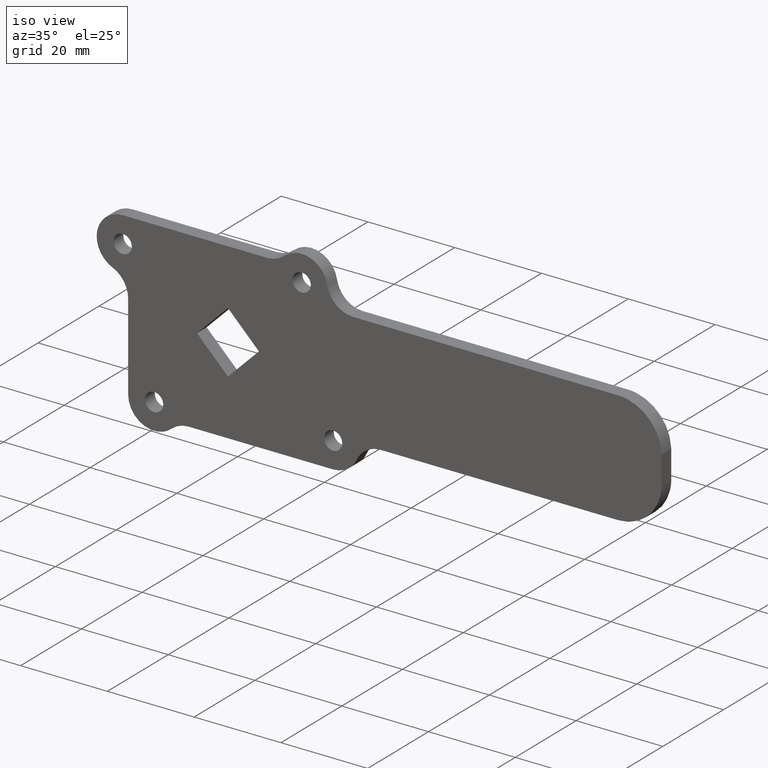
[diagram: clean part render]
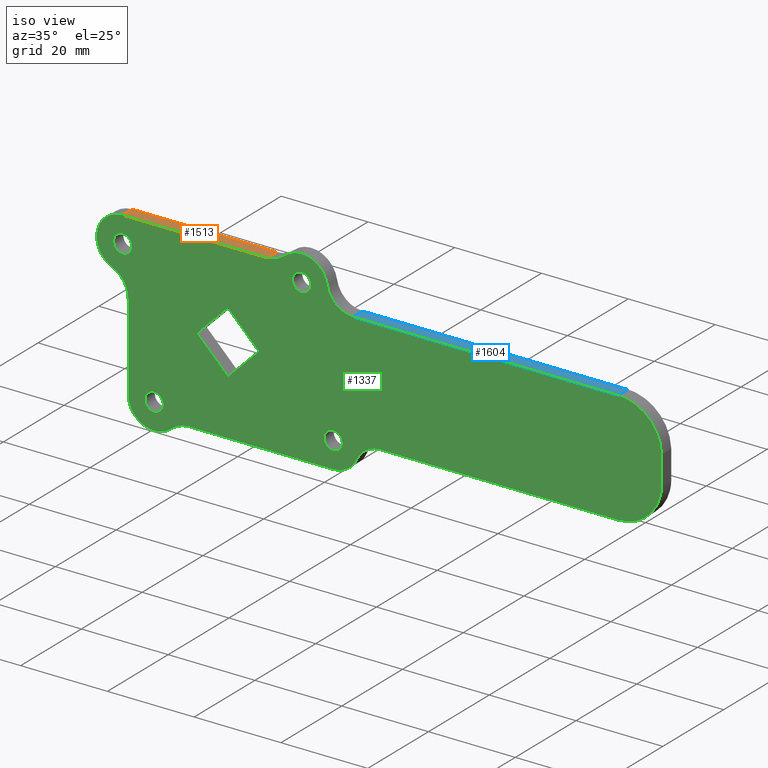
[diagram: same view with three faces highlighted in distinct colors, each labeled with its STEP entity id]
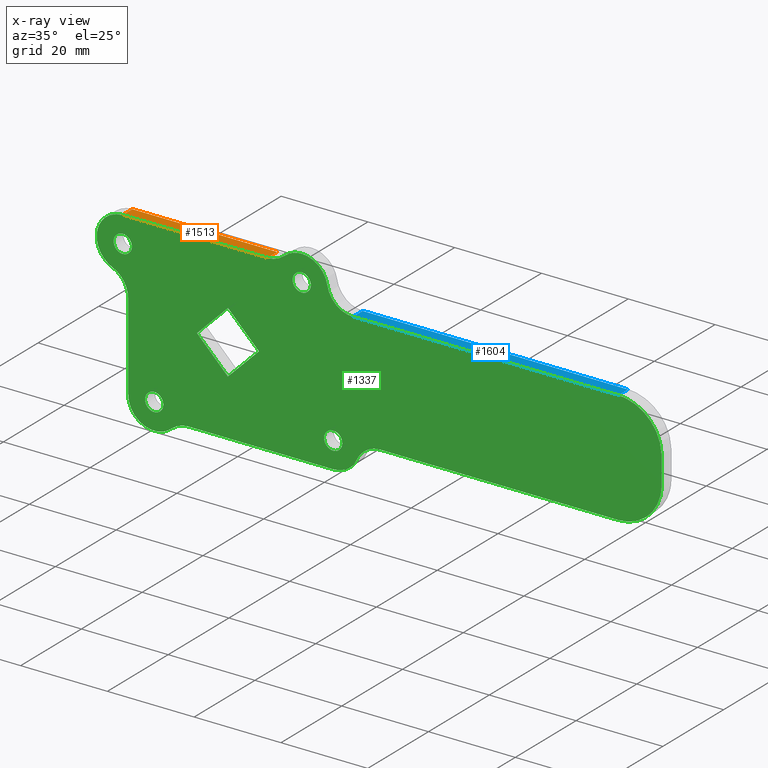
[diagram: x-ray of the same camera — body ghosted, the three highlighted faces saturated]
A machine part, iso view with three faces highlighted in distinct colors.
The next image is the same camera in x-ray (body ghosted, the three faces saturated) — at least one of them is partly hidden behind the body in this view.
Their STEP definitions:

[orange] entity #1513 — the highlighted face is a freeform B-spline surface patch.
#855=CARTESIAN_POINT('',(-24.250000000000000,0.0,20.0));
#856=VERTEX_POINT('',#855);
#872=CARTESIAN_POINT('',(9.062745999999788,0.0,20.0));
#873=VERTEX_POINT('',#872);
#874=CARTESIAN_POINT('',(-24.250000000000000,0.0,20.0));
#875=CARTESIAN_POINT('',(9.062745999999788,0.0,20.0));
#876=QUASI_UNIFORM_CURVE('',1,(#874,#875),.UNSPECIFIED.,.F.,.U.);
#877=EDGE_CURVE('',#856,#873,#876,.T.);
#1183=CARTESIAN_POINT('',(9.062745999999788,-3.200000000000000,20.0));
#1184=VERTEX_POINT('',#1183);
#1198=CARTESIAN_POINT('',(-24.250000000000000,-3.200000000000000,20.0));
#1199=VERTEX_POINT('',#1198);
#1200=CARTESIAN_POINT('',(-24.250000000000000,-3.200000000000000,20.0));
#1201=CARTESIAN_POINT('',(9.062745999999788,-3.200000000000000,20.0));
#1202=QUASI_UNIFORM_CURVE('',1,(#1200,#1201),.UNSPECIFIED.,.F.,.U.);
#1203=EDGE_CURVE('',#1199,#1184,#1202,.T.);
#1490=CARTESIAN_POINT('',(-24.250000000000000,-3.200000000000000,20.0));
#1491=CARTESIAN_POINT('',(-24.250000000000000,0.0,20.0));
#1492=QUASI_UNIFORM_CURVE('',1,(#1490,#1491),.UNSPECIFIED.,.F.,.U.);
#1493=EDGE_CURVE('',#1199,#856,#1492,.T.);
#1498=CARTESIAN_POINT('',(-25.913971598133429,-3.359840053876400,20.0));
#1499=CARTESIAN_POINT('',(10.726718491650690,-3.359840053876400,20.0));
#1500=CARTESIAN_POINT('',(-25.913971598133429,0.159840082486629,20.0));
#1501=CARTESIAN_POINT('',(10.726718491650690,0.159840082486629,20.0));
#1502=B_SPLINE_SURFACE_WITH_KNOTS('',1,1,((#1498,#1500),(#1499,#1501)),.UNSPECIFIED.,.F.,.F.,.U.,(2,2),(2,2),(0.0,36.640690089784123),(0.0,3.519680136363029),.UNSPECIFIED.);
#1503=ORIENTED_EDGE('',*,*,#877,.F.);
#1504=ORIENTED_EDGE('',*,*,#1493,.F.);
#1505=ORIENTED_EDGE('',*,*,#1203,.T.);
#1506=CARTESIAN_POINT('',(9.062745999999788,-3.200000000000000,20.0));
#1507=CARTESIAN_POINT('',(9.062745999999788,0.0,20.0));
#1508=QUASI_UNIFORM_CURVE('',1,(#1506,#1507),.UNSPECIFIED.,.F.,.U.);
#1509=EDGE_CURVE('',#1184,#873,#1508,.T.);
#1510=ORIENTED_EDGE('',*,*,#1509,.T.);
#1511=EDGE_LOOP('',(#1503,#1504,#1505,#1510));
#1512=FACE_OUTER_BOUND('',#1511,.T.);
#1513=ADVANCED_FACE('',(#1512),#1502,.T.);

[blue] entity #1604 — the highlighted face is a freeform B-spline surface patch.
#911=CARTESIAN_POINT('',(28.832159000000001,0.0,12.999999999999799));
#912=VERTEX_POINT('',#911);
#926=CARTESIAN_POINT('',(89.949985999999996,0.0,13.0));
#927=VERTEX_POINT('',#926);
#928=CARTESIAN_POINT('',(28.832159000000001,0.0,12.999999999999799));
#929=CARTESIAN_POINT('',(89.949985999999996,0.0,13.0));
#930=QUASI_UNIFORM_CURVE('',1,(#928,#929),.UNSPECIFIED.,.F.,.U.);
#931=EDGE_CURVE('',#912,#927,#930,.T.);
#1129=CARTESIAN_POINT('',(89.949985999999996,-3.200000000000000,13.0));
#1130=VERTEX_POINT('',#1129);
#1144=CARTESIAN_POINT('',(28.832159000000001,-3.200000000000000,12.999999999999799));
#1145=VERTEX_POINT('',#1144);
#1146=CARTESIAN_POINT('',(28.832159000000001,-3.200000000000000,12.999999999999799));
#1147=CARTESIAN_POINT('',(89.949985999999996,-3.200000000000000,13.0));
#1148=QUASI_UNIFORM_CURVE('',1,(#1146,#1147),.UNSPECIFIED.,.F.,.U.);
#1149=EDGE_CURVE('',#1145,#1130,#1148,.T.);
#1581=CARTESIAN_POINT('',(28.832159000000001,-3.200000000000000,12.999999999999799));
#1582=CARTESIAN_POINT('',(28.832159000000001,0.0,12.999999999999799));
#1583=QUASI_UNIFORM_CURVE('',1,(#1581,#1582),.UNSPECIFIED.,.F.,.U.);
#1584=EDGE_CURVE('',#1145,#912,#1583,.T.);
#1589=CARTESIAN_POINT('',(25.779323659808210,-3.359840053876400,13.0));
#1590=CARTESIAN_POINT('',(93.002822979499683,-3.359840053876400,13.0));
#1591=CARTESIAN_POINT('',(25.779323659808210,0.159840082486630,13.0));
#1592=CARTESIAN_POINT('',(93.002822979499683,0.159840082486630,13.0));
#1593=B_SPLINE_SURFACE_WITH_KNOTS('',1,1,((#1589,#1591),(#1590,#1592)),.UNSPECIFIED.,.F.,.F.,.U.,(2,2),(2,2),(0.0,67.223499319691484),(0.0,3.519680136363030),.UNSPECIFIED.);
#1594=ORIENTED_EDGE('',*,*,#931,.F.);
#1595=ORIENTED_EDGE('',*,*,#1584,.F.);
#1596=ORIENTED_EDGE('',*,*,#1149,.T.);
#1597=CARTESIAN_POINT('',(89.949985999999996,-3.200000000000000,13.0));
#1598=CARTESIAN_POINT('',(89.949985999999996,0.0,13.0));
#1599=QUASI_UNIFORM_CURVE('',1,(#1597,#1598),.UNSPECIFIED.,.F.,.U.);
#1600=EDGE_CURVE('',#1130,#927,#1599,.T.);
#1601=ORIENTED_EDGE('',*,*,#1600,.T.);
#1602=EDGE_LOOP('',(#1594,#1595,#1596,#1601));
#1603=FACE_OUTER_BOUND('',#1602,.T.);
#1604=ADVANCED_FACE('',(#1603),#1593,.T.);

[green] entity #1337 — the highlighted face is a freeform B-spline surface patch.
#96=CARTESIAN_POINT('',(19.093526400772461,-3.200000000000000,16.835235898118810));
#97=VERTEX_POINT('',#96);
#103=CARTESIAN_POINT('',(17.0,-3.200000000000000,19.100000000000001));
#104=VERTEX_POINT('',#103);
#105=CARTESIAN_POINT('',(19.093526400772465,-3.200000000000001,16.835235898118810));
#106=CARTESIAN_POINT('',(19.100000000000001,-3.200000000000001,16.917490774427215));
#107=CARTESIAN_POINT('',(19.100000000000001,-3.200000000000000,17.0));
#108=CARTESIAN_POINT('',(19.100000000000001,-3.200000000000000,19.100000000000001));
#109=CARTESIAN_POINT('',(17.0,-3.200000000000000,19.100000000000001));
#117=(BOUNDED_CURVE()B_SPLINE_CURVE(2,(#105,#106,#107,#108,#109),.UNSPECIFIED.,.F.,.U.)B_SPLINE_CURVE_WITH_KNOTS((3,2,3),(0.736331300493120,0.750000000000000,1.0),.UNSPECIFIED.)CURVE()GEOMETRIC_REPRESENTATION_ITEM()RATIONAL_B_SPLINE_CURVE((0.969723355880383,0.983986122417744,1.0,0.707106781186548,1.0))REPRESENTATION_ITEM(''));
#118=EDGE_CURVE('',#97,#104,#117,.T.);
#120=CARTESIAN_POINT('',(14.906473599227541,-3.200000000000000,17.164764101881200));
#121=VERTEX_POINT('',#120);
#122=CARTESIAN_POINT('',(17.0,-3.200000000000000,19.100000000000001));
#123=CARTESIAN_POINT('',(15.058779969104023,-3.200000000000001,19.099999999999998));
#124=CARTESIAN_POINT('',(14.906473599227548,-3.200000000000001,17.164764101881193));
#132=(BOUNDED_CURVE()B_SPLINE_CURVE(2,(#122,#123,#124),.UNSPECIFIED.,.F.,.U.)B_SPLINE_CURVE_WITH_KNOTS((3,3),(0.0,0.236331300493120),.UNSPECIFIED.)CURVE()GEOMETRIC_REPRESENTATION_ITEM()RATIONAL_B_SPLINE_CURVE((1.0,0.723120658768803,0.969723355880383))REPRESENTATION_ITEM(''));
#133=EDGE_CURVE('',#104,#121,#132,.T.);
#179=CARTESIAN_POINT('',(17.0,-3.200000000000000,14.900000000000000));
#180=VERTEX_POINT('',#179);
#181=CARTESIAN_POINT('',(14.906473599227548,-3.200000000000001,17.164764101881193));
#182=CARTESIAN_POINT('',(14.900000000000000,-3.200000000000001,17.082509225572785));
#183=CARTESIAN_POINT('',(14.900000000000000,-3.200000000000000,17.0));
#184=CARTESIAN_POINT('',(14.900000000000002,-3.200000000000000,14.900000000000002));
#185=CARTESIAN_POINT('',(17.0,-3.200000000000000,14.900000000000000));
#193=(BOUNDED_CURVE()B_SPLINE_CURVE(2,(#181,#182,#183,#184,#185),.UNSPECIFIED.,.F.,.U.)B_SPLINE_CURVE_WITH_KNOTS((3,2,3),(0.236331300493120,0.250000000000000,0.500000000000000),.UNSPECIFIED.)CURVE()GEOMETRIC_REPRESENTATION_ITEM()RATIONAL_B_SPLINE_CURVE((0.969723355880383,0.983986122417744,1.0,0.707106781186548,1.0))REPRESENTATION_ITEM(''));
#194=EDGE_CURVE('',#121,#180,#193,.T.);
#196=CARTESIAN_POINT('',(17.0,-3.200000000000000,14.900000000000000));
#197=CARTESIAN_POINT('',(18.941220030895977,-3.200000000000001,14.900000000000002));
#198=CARTESIAN_POINT('',(19.093526400772458,-3.200000000000001,16.835235898118803));
#206=(BOUNDED_CURVE()B_SPLINE_CURVE(2,(#196,#197,#198),.UNSPECIFIED.,.F.,.U.)B_SPLINE_CURVE_WITH_KNOTS((3,3),(0.500000000000000,0.736331300493120),.UNSPECIFIED.)CURVE()GEOMETRIC_REPRESENTATION_ITEM()RATIONAL_B_SPLINE_CURVE((1.0,0.723120658768803,0.969723355880383))REPRESENTATION_ITEM(''));
#207=EDGE_CURVE('',#180,#97,#206,.T.);
#278=CARTESIAN_POINT('',(-22.156473599227539,-3.200000000000000,13.835235898118601));
#279=VERTEX_POINT('',#278);
#285=CARTESIAN_POINT('',(-24.250000000000000,-3.200000000000000,16.099999999999799));
#286=VERTEX_POINT('',#285);
#287=CARTESIAN_POINT('',(-22.156473599227542,-3.200000000000001,13.835235898118606));
#288=CARTESIAN_POINT('',(-22.150000000000006,-3.200000000000001,13.917490774427018));
#289=CARTESIAN_POINT('',(-22.149999999999999,-3.200000000000000,13.999999999999799));
#290=CARTESIAN_POINT('',(-22.150000000000002,-3.200000000000000,16.099999999999795));
#291=CARTESIAN_POINT('',(-24.250000000000000,-3.200000000000000,16.099999999999799));
#299=(BOUNDED_CURVE()B_SPLINE_CURVE(2,(#287,#288,#289,#290,#291),.UNSPECIFIED.,.F.,.U.)B_SPLINE_CURVE_WITH_KNOTS((3,2,3),(0.736331300493120,0.750000000000000,1.0),.UNSPECIFIED.)CURVE()GEOMETRIC_REPRESENTATION_ITEM()RATIONAL_B_SPLINE_CURVE((0.969723355880383,0.983986122417744,1.0,0.707106781186548,1.0))REPRESENTATION_ITEM(''));
#300=EDGE_CURVE('',#279,#286,#299,.T.);
#302=CARTESIAN_POINT('',(-26.343526400772461,-3.200000000000000,14.164764101881000));
#303=VERTEX_POINT('',#302);
#304=CARTESIAN_POINT('',(-24.250000000000000,-3.200000000000000,16.099999999999799));
#305=CARTESIAN_POINT('',(-26.191220030895973,-3.200000000000000,16.099999999999795));
#306=CARTESIAN_POINT('',(-26.343526400772458,-3.200000000000000,14.164764101881000));
#314=(BOUNDED_CURVE()B_SPLINE_CURVE(2,(#304,#305,#306),.UNSPECIFIED.,.F.,.U.)B_SPLINE_CURVE_WITH_KNOTS((3,3),(0.0,0.236331300493120),.UNSPECIFIED.)CURVE()GEOMETRIC_REPRESENTATION_ITEM()RATIONAL_B_SPLINE_CURVE((1.0,0.723120658768803,0.969723355880383))REPRESENTATION_ITEM(''));
#315=EDGE_CURVE('',#286,#303,#314,.T.);
#361=CARTESIAN_POINT('',(-24.250000000000000,-3.200000000000000,11.899999999999800));
#362=VERTEX_POINT('',#361);
#363=CARTESIAN_POINT('',(-26.343526400772454,-3.200000000000000,14.164764101881003));
#364=CARTESIAN_POINT('',(-26.350000000000009,-3.200000000000000,14.082509225572581));
#365=CARTESIAN_POINT('',(-26.350000000000001,-3.200000000000000,13.999999999999799));
#366=CARTESIAN_POINT('',(-26.350000000000005,-3.200000000000000,11.899999999999800));
#367=CARTESIAN_POINT('',(-24.250000000000000,-3.200000000000000,11.899999999999800));
#375=(BOUNDED_CURVE()B_SPLINE_CURVE(2,(#363,#364,#365,#366,#367),.UNSPECIFIED.,.F.,.U.)B_SPLINE_CURVE_WITH_KNOTS((3,2,3),(0.236331300493120,0.250000000000000,0.500000000000000),.UNSPECIFIED.)CURVE()GEOMETRIC_REPRESENTATION_ITEM()RATIONAL_B_SPLINE_CURVE((0.969723355880383,0.983986122417744,1.0,0.707106781186548,1.0))REPRESENTATION_ITEM(''));
#376=EDGE_CURVE('',#303,#362,#375,.T.);
#378=CARTESIAN_POINT('',(-24.250000000000000,-3.200000000000000,11.899999999999800));
#379=CARTESIAN_POINT('',(-22.308779969104030,-3.200000000000001,11.899999999999800));
#380=CARTESIAN_POINT('',(-22.156473599227542,-3.200000000000001,13.835235898118606));
#388=(BOUNDED_CURVE()B_SPLINE_CURVE(2,(#378,#379,#380),.UNSPECIFIED.,.F.,.U.)B_SPLINE_CURVE_WITH_KNOTS((3,3),(0.500000000000000,0.736331300493120),.UNSPECIFIED.)CURVE()GEOMETRIC_REPRESENTATION_ITEM()RATIONAL_B_SPLINE_CURVE((1.0,0.723120658768803,0.969723355880383))REPRESENTATION_ITEM(''));
#389=EDGE_CURVE('',#362,#279,#388,.T.);
#460=CARTESIAN_POINT('',(26.343526400772461,-3.200000000000000,-14.164764101881200));
#461=VERTEX_POINT('',#460);
#467=CARTESIAN_POINT('',(24.250000000000000,-3.200000000000000,-11.900000000000000));
#468=VERTEX_POINT('',#467);
#469=CARTESIAN_POINT('',(26.343526400772465,-3.200000000000001,-14.164764101881200));
#470=CARTESIAN_POINT('',(26.350000000000005,-3.200000000000001,-14.082509225572787));
#471=CARTESIAN_POINT('',(26.350000000000001,-3.200000000000000,-14.0));
#472=CARTESIAN_POINT('',(26.350000000000005,-3.200000000000000,-11.900000000000000));
#473=CARTESIAN_POINT('',(24.250000000000000,-3.200000000000000,-11.900000000000000));
#481=(BOUNDED_CURVE()B_SPLINE_CURVE(2,(#469,#470,#471,#472,#473),.UNSPECIFIED.,.F.,.U.)B_SPLINE_CURVE_WITH_KNOTS((3,2,3),(0.736331300493120,0.750000000000000,1.0),.UNSPECIFIED.)CURVE()GEOMETRIC_REPRESENTATION_ITEM()RATIONAL_B_SPLINE_CURVE((0.969723355880383,0.983986122417744,1.0,0.707106781186548,1.0))REPRESENTATION_ITEM(''));
#482=EDGE_CURVE('',#461,#468,#481,.T.);
#484=CARTESIAN_POINT('',(22.156473599227539,-3.200000000000000,-13.835235898118800));
#485=VERTEX_POINT('',#484);
#486=CARTESIAN_POINT('',(24.250000000000000,-3.200000000000000,-11.900000000000000));
#487=CARTESIAN_POINT('',(22.308779969104030,-3.200000000000001,-11.900000000000002));
#488=CARTESIAN_POINT('',(22.156473599227542,-3.200000000000001,-13.835235898118803));
#496=(BOUNDED_CURVE()B_SPLINE_CURVE(2,(#486,#487,#488),.UNSPECIFIED.,.F.,.U.)B_SPLINE_CURVE_WITH_KNOTS((3,3),(0.0,0.236331300493120),.UNSPECIFIED.)CURVE()GEOMETRIC_REPRESENTATION_ITEM()RATIONAL_B_SPLINE_CURVE((1.0,0.723120658768803,0.969723355880383))REPRESENTATION_ITEM(''));
#497=EDGE_CURVE('',#468,#485,#496,.T.);
#543=CARTESIAN_POINT('',(24.250000000000000,-3.200000000000000,-16.100000000000001));
#544=VERTEX_POINT('',#543);
#545=CARTESIAN_POINT('',(22.156473599227535,-3.200000000000000,-13.835235898118805));
#546=CARTESIAN_POINT('',(22.149999999999995,-3.200000000000001,-13.917490774427211));
#547=CARTESIAN_POINT('',(22.149999999999999,-3.200000000000000,-14.0));
#548=CARTESIAN_POINT('',(22.150000000000002,-3.200000000000000,-16.100000000000005));
#549=CARTESIAN_POINT('',(24.250000000000000,-3.200000000000000,-16.100000000000001));
#557=(BOUNDED_CURVE()B_SPLINE_CURVE(2,(#545,#546,#547,#548,#549),.UNSPECIFIED.,.F.,.U.)B_SPLINE_CURVE_WITH_KNOTS((3,2,3),(0.236331300493120,0.250000000000000,0.500000000000000),.UNSPECIFIED.)CURVE()GEOMETRIC_REPRESENTATION_ITEM()RATIONAL_B_SPLINE_CURVE((0.969723355880383,0.983986122417744,1.0,0.707106781186548,1.0))REPRESENTATION_ITEM(''));
#558=EDGE_CURVE('',#485,#544,#557,.T.);
#560=CARTESIAN_POINT('',(24.250000000000000,-3.200000000000000,-16.100000000000001));
#561=CARTESIAN_POINT('',(26.191220030895984,-3.200000000000001,-16.099999999999994));
#562=CARTESIAN_POINT('',(26.343526400772461,-3.200000000000001,-14.164764101881193));
#570=(BOUNDED_CURVE()B_SPLINE_CURVE(2,(#560,#561,#562),.UNSPECIFIED.,.F.,.U.)B_SPLINE_CURVE_WITH_KNOTS((3,3),(0.500000000000000,0.736331300493120),.UNSPECIFIED.)CURVE()GEOMETRIC_REPRESENTATION_ITEM()RATIONAL_B_SPLINE_CURVE((1.0,0.723120658768803,0.969723355880383))REPRESENTATION_ITEM(''));
#571=EDGE_CURVE('',#544,#461,#570,.T.);
#642=CARTESIAN_POINT('',(-14.906473599227541,-3.200000000000000,-17.164764101881200));
#643=VERTEX_POINT('',#642);
#649=CARTESIAN_POINT('',(-17.0,-3.200000000000000,-14.900000000000000));
#650=VERTEX_POINT('',#649);
#651=CARTESIAN_POINT('',(-14.906473599227548,-3.200000000000001,-17.164764101881193));
#652=CARTESIAN_POINT('',(-14.900000000000000,-3.200000000000001,-17.082509225572785));
#653=CARTESIAN_POINT('',(-14.900000000000000,-3.200000000000000,-17.0));
#654=CARTESIAN_POINT('',(-14.900000000000002,-3.200000000000000,-14.900000000000002));
#655=CARTESIAN_POINT('',(-17.0,-3.200000000000000,-14.900000000000000));
#663=(BOUNDED_CURVE()B_SPLINE_CURVE(2,(#651,#652,#653,#654,#655),.UNSPECIFIED.,.F.,.U.)B_SPLINE_CURVE_WITH_KNOTS((3,2,3),(0.736331300493120,0.750000000000000,1.0),.UNSPECIFIED.)CURVE()GEOMETRIC_REPRESENTATION_ITEM()RATIONAL_B_SPLINE_CURVE((0.969723355880383,0.983986122417744,1.0,0.707106781186548,1.0))REPRESENTATION_ITEM(''));
#664=EDGE_CURVE('',#643,#650,#663,.T.);
#666=CARTESIAN_POINT('',(-19.093526400772461,-3.200000000000000,-16.835235898118810));
#667=VERTEX_POINT('',#666);
#668=CARTESIAN_POINT('',(-17.0,-3.200000000000000,-14.900000000000000));
#669=CARTESIAN_POINT('',(-18.941220030895980,-3.200000000000000,-14.900000000000004));
#670=CARTESIAN_POINT('',(-19.093526400772465,-3.200000000000001,-16.835235898118810));
#678=(BOUNDED_CURVE()B_SPLINE_CURVE(2,(#668,#669,#670),.UNSPECIFIED.,.F.,.U.)B_SPLINE_CURVE_WITH_KNOTS((3,3),(0.0,0.236331300493120),.UNSPECIFIED.)CURVE()GEOMETRIC_REPRESENTATION_ITEM()RATIONAL_B_SPLINE_CURVE((1.0,0.723120658768803,0.969723355880383))REPRESENTATION_ITEM(''));
#679=EDGE_CURVE('',#650,#667,#678,.T.);
#725=CARTESIAN_POINT('',(-17.0,-3.200000000000000,-19.100000000000001));
#726=VERTEX_POINT('',#725);
#727=CARTESIAN_POINT('',(-19.093526400772461,-3.200000000000001,-16.835235898118807));
#728=CARTESIAN_POINT('',(-19.100000000000001,-3.200000000000001,-16.917490774427222));
#729=CARTESIAN_POINT('',(-19.100000000000001,-3.200000000000000,-17.0));
#730=CARTESIAN_POINT('',(-19.100000000000001,-3.200000000000000,-19.100000000000001));
#731=CARTESIAN_POINT('',(-17.0,-3.200000000000000,-19.100000000000001));
#739=(BOUNDED_CURVE()B_SPLINE_CURVE(2,(#727,#728,#729,#730,#731),.UNSPECIFIED.,.F.,.U.)B_SPLINE_CURVE_WITH_KNOTS((3,2,3),(0.236331300493120,0.250000000000000,0.500000000000000),.UNSPECIFIED.)CURVE()GEOMETRIC_REPRESENTATION_ITEM()RATIONAL_B_SPLINE_CURVE((0.969723355880384,0.983986122417745,1.0,0.707106781186548,1.0))REPRESENTATION_ITEM(''));
#740=EDGE_CURVE('',#667,#726,#739,.T.);
#742=CARTESIAN_POINT('',(-17.0,-3.200000000000000,-19.100000000000001));
#743=CARTESIAN_POINT('',(-15.058779969104023,-3.200000000000001,-19.099999999999998));
#744=CARTESIAN_POINT('',(-14.906473599227548,-3.200000000000001,-17.164764101881193));
#752=(BOUNDED_CURVE()B_SPLINE_CURVE(2,(#742,#743,#744),.UNSPECIFIED.,.F.,.U.)B_SPLINE_CURVE_WITH_KNOTS((3,3),(0.500000000000000,0.736331300493120),.UNSPECIFIED.)CURVE()GEOMETRIC_REPRESENTATION_ITEM()RATIONAL_B_SPLINE_CURVE((1.0,0.723120658768803,0.969723355880383))REPRESENTATION_ITEM(''));
#753=EDGE_CURVE('',#726,#643,#752,.T.);
#1055=CARTESIAN_POINT('',(-36.754573230449672,-3.200000000000000,25.296899117684969));
#1056=CARTESIAN_POINT('',(106.505923443722300,-3.200000000000000,25.296899117684969));
#1057=CARTESIAN_POINT('',(-36.754573230449672,-3.200000000000000,-25.293884845904248));
#1058=CARTESIAN_POINT('',(106.505923443722300,-3.200000000000000,-25.293884845904248));
#1059=B_SPLINE_SURFACE_WITH_KNOTS('',1,1,((#1055,#1057),(#1056,#1058)),.UNSPECIFIED.,.F.,.F.,.U.,(2,2),(2,2),(0.0,143.260496674172000),(0.0,50.590783963589217),.UNSPECIFIED.);
#1060=CARTESIAN_POINT('',(24.250000000000000,-3.200000000000000,-20.0));
#1061=VERTEX_POINT('',#1060);
#1062=CARTESIAN_POINT('',(29.704355927316101,-3.200000000000000,-16.500000033524799));
#1063=VERTEX_POINT('',#1062);
#1064=CARTESIAN_POINT('',(24.250000000000000,-3.200000000000000,-20.0));
#1065=CARTESIAN_POINT('',(28.100133627770180,-3.200000000000001,-20.0));
#1066=CARTESIAN_POINT('',(29.704355927316101,-3.200000000000000,-16.500000033524799));
#1074=(BOUNDED_CURVE()B_SPLINE_CURVE(2,(#1064,#1065,#1066),.UNSPECIFIED.,.F.,.U.)CURVE()GEOMETRIC_REPRESENTATION_ITEM()QUASI_UNIFORM_CURVE()RATIONAL_B_SPLINE_CURVE((1.0,0.841625415339563,1.0))REPRESENTATION_ITEM(''));
#1075=EDGE_CURVE('',#1061,#1063,#1074,.T.);
#1076=ORIENTED_EDGE('',*,*,#1075,.T.);
#1077=CARTESIAN_POINT('',(35.158712000000001,-3.200000000000000,-13.0));
#1078=VERTEX_POINT('',#1077);
#1079=CARTESIAN_POINT('',(35.158712000000001,-3.200000000000000,-13.0));
#1080=CARTESIAN_POINT('',(31.308578286449592,-3.200000000000002,-12.999999999999996));
#1081=CARTESIAN_POINT('',(29.704355927316080,-3.200000000000000,-16.500000033524788));
#1089=(BOUNDED_CURVE()B_SPLINE_CURVE(2,(#1079,#1080,#1081),.UNSPECIFIED.,.F.,.U.)CURVE()GEOMETRIC_REPRESENTATION_ITEM()QUASI_UNIFORM_CURVE()RATIONAL_B_SPLINE_CURVE((1.0,0.841625409870449,1.0))REPRESENTATION_ITEM(''));
#1090=EDGE_CURVE('',#1078,#1063,#1089,.T.);
#1091=ORIENTED_EDGE('',*,*,#1090,.F.);
#1092=CARTESIAN_POINT('',(89.949985999999996,-3.200000000000000,-13.0));
#1093=VERTEX_POINT('',#1092);
#1094=CARTESIAN_POINT('',(89.949985999999996,-3.200000000000000,-13.0));
#1095=CARTESIAN_POINT('',(35.158712000000001,-3.200000000000000,-13.0));
#1096=QUASI_UNIFORM_CURVE('',1,(#1094,#1095),.UNSPECIFIED.,.F.,.U.);
#1097=EDGE_CURVE('',#1093,#1078,#1096,.T.);
#1098=ORIENTED_EDGE('',*,*,#1097,.F.);
#1099=CARTESIAN_POINT('',(99.944429013755993,-3.200000000000000,-3.333333033809485));
#1100=VERTEX_POINT('',#1099);
#1101=CARTESIAN_POINT('',(89.949985999999996,-3.200000000000000,-13.0));
#1102=CARTESIAN_POINT('',(99.622027809851616,-3.200000000000002,-13.0));
#1103=CARTESIAN_POINT('',(99.944429013755993,-3.200000000000000,-3.333333033809485));
#1111=(BOUNDED_CURVE()B_SPLINE_CURVE(2,(#1101,#1102,#1103),.UNSPECIFIED.,.F.,.U.)CURVE()GEOMETRIC_REPRESENTATION_ITEM()QUASI_UNIFORM_CURVE()RATIONAL_B_SPLINE_CURVE((1.0,0.718795277890899,1.0))REPRESENTATION_ITEM(''));
#1112=EDGE_CURVE('',#1093,#1100,#1111,.T.);
#1113=ORIENTED_EDGE('',*,*,#1112,.T.);
#1114=CARTESIAN_POINT('',(99.944428901375602,-3.200000000000000,3.333333303380950));
#1115=VERTEX_POINT('',#1114);
#1116=CARTESIAN_POINT('',(99.944429013756007,-3.200000000000000,-3.333333033809503));
#1117=CARTESIAN_POINT('',(100.055601889317570,-3.200000000000000,0.000000136659949));
#1118=CARTESIAN_POINT('',(99.944428901375602,-3.200000000000000,3.333333303380950));
#1126=(BOUNDED_CURVE()B_SPLINE_CURVE(2,(#1116,#1117,#1118),.UNSPECIFIED.,.F.,.U.)CURVE()GEOMETRIC_REPRESENTATION_ITEM()QUASI_UNIFORM_CURVE()RATIONAL_B_SPLINE_CURVE((1.0,0.999444290092032,1.0))REPRESENTATION_ITEM(''));
#1127=EDGE_CURVE('',#1100,#1115,#1126,.T.);
#1128=ORIENTED_EDGE('',*,*,#1127,.T.);
#1129=CARTESIAN_POINT('',(89.949985999999996,-3.200000000000000,13.0));
#1130=VERTEX_POINT('',#1129);
#1131=CARTESIAN_POINT('',(99.944428901375602,-3.200000000000000,3.333333303380947));
#1132=CARTESIAN_POINT('',(99.622027545495811,-3.200000000000000,13.000000000000002));
#1133=CARTESIAN_POINT('',(89.949985999999996,-3.200000000000000,13.0));
#1141=(BOUNDED_CURVE()B_SPLINE_CURVE(2,(#1131,#1132,#1133),.UNSPECIFIED.,.F.,.U.)CURVE()GEOMETRIC_REPRESENTATION_ITEM()QUASI_UNIFORM_CURVE()RATIONAL_B_SPLINE_CURVE((1.0,0.718795287386504,1.0))REPRESENTATION_ITEM(''));
#1142=EDGE_CURVE('',#1115,#1130,#1141,.T.);
#1143=ORIENTED_EDGE('',*,*,#1142,.T.);
#1144=CARTESIAN_POINT('',(28.832159000000001,-3.200000000000000,12.999999999999799));
#1145=VERTEX_POINT('',#1144);
#1146=CARTESIAN_POINT('',(28.832159000000001,-3.200000000000000,12.999999999999799));
#1147=CARTESIAN_POINT('',(89.949985999999996,-3.200000000000000,13.0));
#1148=QUASI_UNIFORM_CURVE('',1,(#1146,#1147),.UNSPECIFIED.,.F.,.U.);
#1149=EDGE_CURVE('',#1145,#1130,#1148,.T.);
#1150=ORIENTED_EDGE('',*,*,#1149,.F.);
#1151=CARTESIAN_POINT('',(22.916079787059001,-3.200000000000000,17.999999976575300));
#1152=VERTEX_POINT('',#1151);
#1153=CARTESIAN_POINT('',(22.916079787059001,-3.200000000000000,17.999999976575300));
#1154=CARTESIAN_POINT('',(23.761233572877625,-3.200000000000000,13.000000000000002));
#1155=CARTESIAN_POINT('',(28.832159000000001,-3.200000000000000,12.999999999999799));
#1163=(BOUNDED_CURVE()B_SPLINE_CURVE(2,(#1153,#1154,#1155),.UNSPECIFIED.,.F.,.U.)CURVE()GEOMETRIC_REPRESENTATION_ITEM()QUASI_UNIFORM_CURVE()RATIONAL_B_SPLINE_CURVE((1.0,0.763762622180007,1.0))REPRESENTATION_ITEM(''));
#1164=EDGE_CURVE('',#1152,#1145,#1163,.T.);
#1165=ORIENTED_EDGE('',*,*,#1164,.F.);
#1166=CARTESIAN_POINT('',(13.031372958014559,-3.200000000000000,21.499999992431299));
#1167=VERTEX_POINT('',#1166);
#1168=CARTESIAN_POINT('',(22.916079787059001,-3.200000000000000,17.999999976575300));
#1169=CARTESIAN_POINT('',(22.328118308223665,-3.200000000000000,21.478427078564120));
#1170=CARTESIAN_POINT('',(19.002658994133672,-3.200000000000000,22.655913449940300));
#1171=CARTESIAN_POINT('',(15.677199680043655,-3.200000000000000,23.833399821316476));
#1172=CARTESIAN_POINT('',(13.031372958014559,-3.200000000000000,21.499999992431299));
#1180=(BOUNDED_CURVE()B_SPLINE_CURVE(2,(#1168,#1169,#1170,#1171,#1172),.UNSPECIFIED.,.F.,.U.)B_SPLINE_CURVE_WITH_KNOTS((3,2,3),(0.0,0.500000000000000,1.0),.UNSPECIFIED.)CURVE()GEOMETRIC_REPRESENTATION_ITEM()RATIONAL_B_SPLINE_CURVE((1.0,0.862037345422480,1.0,0.862037345422480,1.0))REPRESENTATION_ITEM(''));
#1181=EDGE_CURVE('',#1152,#1167,#1180,.T.);
#1182=ORIENTED_EDGE('',*,*,#1181,.T.);
#1183=CARTESIAN_POINT('',(9.062745999999788,-3.200000000000000,20.0));
#1184=VERTEX_POINT('',#1183);
#1185=CARTESIAN_POINT('',(9.062745999999788,-3.200000000000000,20.0));
#1186=CARTESIAN_POINT('',(11.330532831516408,-3.200000000000000,20.0));
#1187=CARTESIAN_POINT('',(13.031372958014559,-3.200000000000000,21.499999992431292));
#1195=(BOUNDED_CURVE()B_SPLINE_CURVE(2,(#1185,#1186,#1187),.UNSPECIFIED.,.F.,.U.)CURVE()GEOMETRIC_REPRESENTATION_ITEM()QUASI_UNIFORM_CURVE()RATIONAL_B_SPLINE_CURVE((1.0,0.935414347030623,1.0))REPRESENTATION_ITEM(''));
#1196=EDGE_CURVE('',#1184,#1167,#1195,.T.);
#1197=ORIENTED_EDGE('',*,*,#1196,.F.);
#1198=CARTESIAN_POINT('',(-24.250000000000000,-3.200000000000000,20.0));
#1199=VERTEX_POINT('',#1198);
#1200=CARTESIAN_POINT('',(-24.250000000000000,-3.200000000000000,20.0));
#1201=CARTESIAN_POINT('',(9.062745999999788,-3.200000000000000,20.0));
#1202=QUASI_UNIFORM_CURVE('',1,(#1200,#1201),.UNSPECIFIED.,.F.,.U.);
#1203=EDGE_CURVE('',#1199,#1184,#1202,.T.);
#1204=ORIENTED_EDGE('',*,*,#1203,.F.);
#1205=CARTESIAN_POINT('',(-26.625000006282949,-3.200000000000000,8.490066212841748));
#1206=VERTEX_POINT('',#1205);
#1207=CARTESIAN_POINT('',(-24.250000000000000,-3.200000000000000,20.0));
#1208=CARTESIAN_POINT('',(-29.138340449142024,-3.200000000000000,19.999999999999801));
#1209=CARTESIAN_POINT('',(-30.126206465461241,-3.200000000000000,15.212517041229120));
#1210=CARTESIAN_POINT('',(-31.114072481780454,-3.200000000000000,10.425034082458430));
#1211=CARTESIAN_POINT('',(-26.625000006282949,-3.200000000000000,8.490066212841748));
#1219=(BOUNDED_CURVE()B_SPLINE_CURVE(2,(#1207,#1208,#1209,#1210,#1211),.UNSPECIFIED.,.F.,.U.)B_SPLINE_CURVE_WITH_KNOTS((3,2,3),(0.0,0.500000000000000,1.0),.UNSPECIFIED.)CURVE()GEOMETRIC_REPRESENTATION_ITEM()RATIONAL_B_SPLINE_CURVE((1.0,0.775269686476332,1.0,0.775269686476332,1.0))REPRESENTATION_ITEM(''));
#1220=EDGE_CURVE('',#1199,#1206,#1219,.T.);
#1221=ORIENTED_EDGE('',*,*,#1220,.T.);
#1222=CARTESIAN_POINT('',(-23.0,-3.200000000000000,2.980132000000000));
#1223=VERTEX_POINT('',#1222);
#1224=CARTESIAN_POINT('',(-23.0,-3.200000000000000,2.980132000000000));
#1225=CARTESIAN_POINT('',(-23.0,-3.200000000000000,6.927547558430076));
#1226=CARTESIAN_POINT('',(-26.625000006282949,-3.200000000000000,8.490066212841747));
#1234=(BOUNDED_CURVE()B_SPLINE_CURVE(2,(#1224,#1225,#1226),.UNSPECIFIED.,.F.,.U.)CURVE()GEOMETRIC_REPRESENTATION_ITEM()QUASI_UNIFORM_CURVE()RATIONAL_B_SPLINE_CURVE((1.0,0.835414068676778,1.0))REPRESENTATION_ITEM(''));
#1235=EDGE_CURVE('',#1223,#1206,#1234,.T.);
#1236=ORIENTED_EDGE('',*,*,#1235,.F.);
#1237=CARTESIAN_POINT('',(-23.0,-3.200000000000000,-17.0));
#1238=VERTEX_POINT('',#1237);
#1239=CARTESIAN_POINT('',(-23.0,-3.200000000000000,-17.0));
#1240=CARTESIAN_POINT('',(-23.0,-3.200000000000000,2.980132000000000));
#1241=QUASI_UNIFORM_CURVE('',1,(#1239,#1240),.UNSPECIFIED.,.F.,.U.);
#1242=EDGE_CURVE('',#1238,#1223,#1241,.T.);
#1243=ORIENTED_EDGE('',*,*,#1242,.F.);
#1244=CARTESIAN_POINT('',(-13.031372958014741,-3.200000000000000,-21.499999992431299));
#1245=VERTEX_POINT('',#1244);
#1246=CARTESIAN_POINT('',(-23.0,-3.200000000000000,-17.0));
#1247=CARTESIAN_POINT('',(-22.999999999999993,-3.199999999999999,-20.874507888190664));
#1248=CARTESIAN_POINT('',(-19.468626938548532,-3.200000000000000,-22.468626979258371));
#1249=CARTESIAN_POINT('',(-15.937253877097055,-3.199999999999999,-24.062746070326082));
#1250=CARTESIAN_POINT('',(-13.031372958014741,-3.200000000000000,-21.499999992431299));
#1258=(BOUNDED_CURVE()B_SPLINE_CURVE(2,(#1246,#1247,#1248,#1249,#1250),.UNSPECIFIED.,.F.,.U.)B_SPLINE_CURVE_WITH_KNOTS((3,2,3),(0.0,0.500000000000000,1.0),.UNSPECIFIED.)CURVE()GEOMETRIC_REPRESENTATION_ITEM()RATIONAL_B_SPLINE_CURVE((1.0,0.840070777700135,1.0,0.840070777700135,1.0))REPRESENTATION_ITEM(''));
#1259=EDGE_CURVE('',#1238,#1245,#1258,.T.);
#1260=ORIENTED_EDGE('',*,*,#1259,.T.);
#1261=CARTESIAN_POINT('',(-9.062746000000001,-3.200000000000000,-20.0));
#1262=VERTEX_POINT('',#1261);
#1263=CARTESIAN_POINT('',(-9.062746000000001,-3.200000000000000,-20.0));
#1264=CARTESIAN_POINT('',(-11.330532831516605,-3.200000000000000,-20.0));
#1265=CARTESIAN_POINT('',(-13.031372958014760,-3.200000000000000,-21.499999992431270));
#1273=(BOUNDED_CURVE()B_SPLINE_CURVE(2,(#1263,#1264,#1265),.UNSPECIFIED.,.F.,.U.)CURVE()GEOMETRIC_REPRESENTATION_ITEM()QUASI_UNIFORM_CURVE()RATIONAL_B_SPLINE_CURVE((1.0,0.935414347030623,1.0))REPRESENTATION_ITEM(''));
#1274=EDGE_CURVE('',#1262,#1245,#1273,.T.);
#1275=ORIENTED_EDGE('',*,*,#1274,.F.);
#1276=CARTESIAN_POINT('',(24.250000000000000,-3.200000000000000,-20.0));
#1277=CARTESIAN_POINT('',(-9.062746000000001,-3.200000000000000,-20.0));
#1278=QUASI_UNIFORM_CURVE('',1,(#1276,#1277),.UNSPECIFIED.,.F.,.U.);
#1279=EDGE_CURVE('',#1061,#1262,#1278,.T.);
#1280=ORIENTED_EDGE('',*,*,#1279,.F.);
#1281=EDGE_LOOP('',(#1076,#1091,#1098,#1113,#1128,#1143,#1150,#1165,#1182,#1197,#1204,#1221,#1236,#1243,#1260,#1275,#1280));
#1282=FACE_OUTER_BOUND('',#1281,.T.);
#1283=CARTESIAN_POINT('',(7.141778000000000,-3.200000000000000,0.0));
#1284=VERTEX_POINT('',#1283);
#1285=CARTESIAN_POINT('',(0.0,-3.200000000000000,-7.141778000000200));
#1286=VERTEX_POINT('',#1285);
#1287=CARTESIAN_POINT('',(7.141778000000000,-3.200000000000000,0.0));
#1288=CARTESIAN_POINT('',(0.0,-3.200000000000000,-7.141778000000200));
#1289=QUASI_UNIFORM_CURVE('',1,(#1287,#1288),.UNSPECIFIED.,.F.,.U.);
#1290=EDGE_CURVE('',#1284,#1286,#1289,.T.);
#1291=ORIENTED_EDGE('',*,*,#1290,.T.);
#1292=CARTESIAN_POINT('',(-7.141779000000000,-3.200000000000000,0.0));
#1293=VERTEX_POINT('',#1292);
#1294=CARTESIAN_POINT('',(0.0,-3.200000000000000,-7.141778000000200));
#1295=CARTESIAN_POINT('',(-7.141779000000000,-3.200000000000000,0.0));
#1296=QUASI_UNIFORM_CURVE('',1,(#1294,#1295),.UNSPECIFIED.,.F.,.U.);
#1297=EDGE_CURVE('',#1286,#1293,#1296,.T.);
#1298=ORIENTED_EDGE('',*,*,#1297,.T.);
#1299=CARTESIAN_POINT('',(0.0,-3.200000000000000,7.141778999999900));
#1300=VERTEX_POINT('',#1299);
#1301=CARTESIAN_POINT('',(-7.141779000000000,-3.200000000000000,0.0));
#1302=CARTESIAN_POINT('',(0.0,-3.200000000000000,7.141778999999900));
#1303=QUASI_UNIFORM_CURVE('',1,(#1301,#1302),.UNSPECIFIED.,.F.,.U.);
#1304=EDGE_CURVE('',#1293,#1300,#1303,.T.);
#1305=ORIENTED_EDGE('',*,*,#1304,.T.);
#1306=CARTESIAN_POINT('',(0.0,-3.200000000000000,7.141778999999900));
#1307=CARTESIAN_POINT('',(7.141778000000000,-3.200000000000000,0.0));
#1308=QUASI_UNIFORM_CURVE('',1,(#1306,#1307),.UNSPECIFIED.,.F.,.U.);
#1309=EDGE_CURVE('',#1300,#1284,#1308,.T.);
#1310=ORIENTED_EDGE('',*,*,#1309,.T.);
#1311=EDGE_LOOP('',(#1291,#1298,#1305,#1310));
#1312=FACE_BOUND('',#1311,.T.);
#1313=ORIENTED_EDGE('',*,*,#753,.F.);
#1314=ORIENTED_EDGE('',*,*,#740,.F.);
#1315=ORIENTED_EDGE('',*,*,#679,.F.);
#1316=ORIENTED_EDGE('',*,*,#664,.F.);
#1317=EDGE_LOOP('',(#1313,#1314,#1315,#1316));
#1318=FACE_BOUND('',#1317,.T.);
#1319=ORIENTED_EDGE('',*,*,#571,.F.);
#1320=ORIENTED_EDGE('',*,*,#558,.F.);
#1321=ORIENTED_EDGE('',*,*,#497,.F.);
#1322=ORIENTED_EDGE('',*,*,#482,.F.);
#1323=EDGE_LOOP('',(#1319,#1320,#1321,#1322));
#1324=FACE_BOUND('',#1323,.T.);
#1325=ORIENTED_EDGE('',*,*,#389,.F.);
#1326=ORIENTED_EDGE('',*,*,#376,.F.);
#1327=ORIENTED_EDGE('',*,*,#315,.F.);
#1328=ORIENTED_EDGE('',*,*,#300,.F.);
#1329=EDGE_LOOP('',(#1325,#1326,#1327,#1328));
#1330=FACE_BOUND('',#1329,.T.);
#1331=ORIENTED_EDGE('',*,*,#207,.F.);
#1332=ORIENTED_EDGE('',*,*,#194,.F.);
#1333=ORIENTED_EDGE('',*,*,#133,.F.);
#1334=ORIENTED_EDGE('',*,*,#118,.F.);
#1335=EDGE_LOOP('',(#1331,#1332,#1333,#1334));
#1336=FACE_BOUND('',#1335,.T.);
#1337=ADVANCED_FACE('',(#1282,#1312,#1318,#1324,#1330,#1336),#1059,.F.);